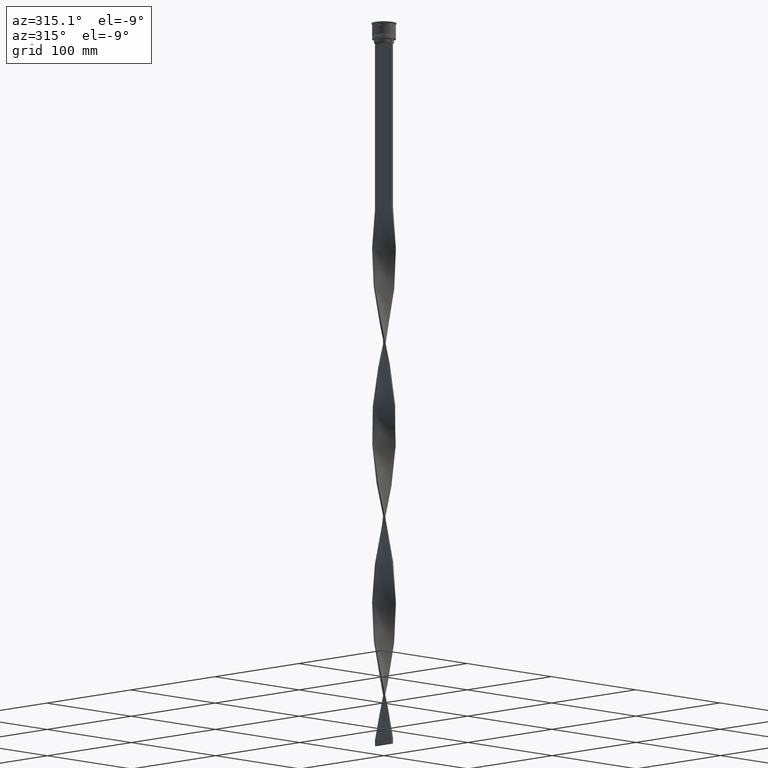
[diagram: clean part render]
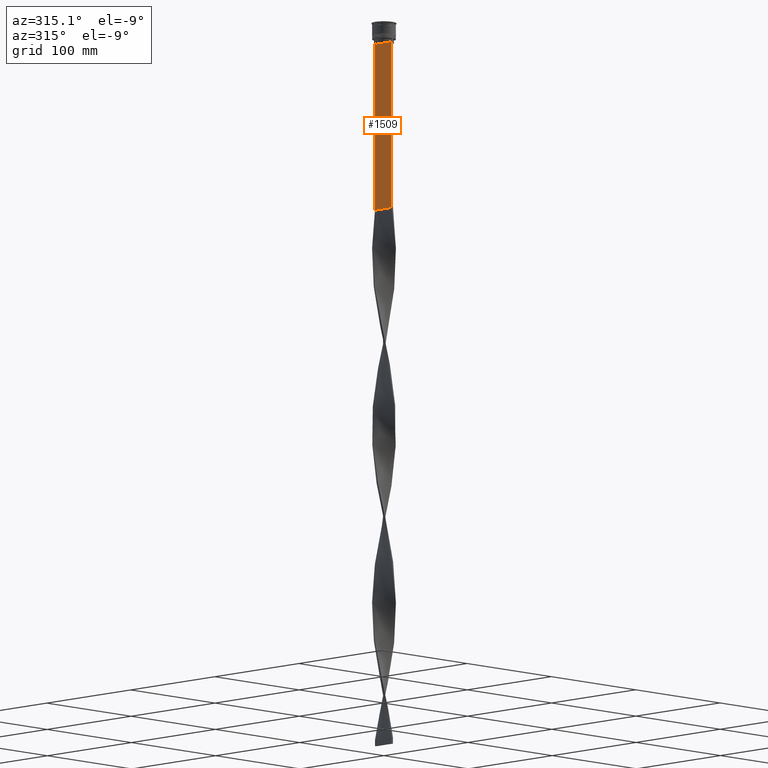
[diagram: same view with one face highlighted and labeled with its STEP entity id]
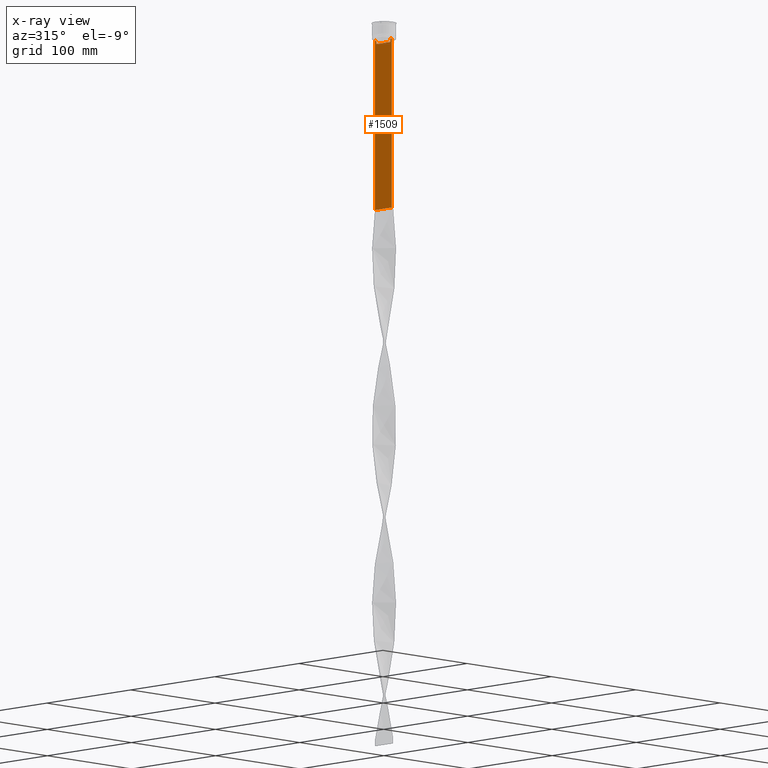
[diagram: x-ray of the same camera — body ghosted, the highlighted face saturated]
A machine part, auxiliary view. The second image highlights one B-rep face of the part: STEP entity #1509.
The next image is the same camera in x-ray: the body ghosted, the highlighted face saturated — about 0% of this face is hidden behind the body in this view.
In plain terms, the highlighted planar face has unit normal (-1, 0, 0).
Its self-contained STEP definition (entity closure, byte-faithful):
#82 = FACE_OUTER_BOUND ( 'NONE', #1868, .T. ) ;
#96 = ORIENTED_EDGE ( 'NONE', *, *, #2450, .F. ) ;
#126 = VERTEX_POINT ( 'NONE', #2673 ) ;
#156 = VECTOR ( 'NONE', #3453, 1000.000000000000000 ) ;
#188 = EDGE_CURVE ( 'NONE', #4255, #3813, #701, .T. ) ;
#273 = DIRECTION ( 'NONE',  ( -0.000000000000000000, -0.000000000000000000, 1.000000000000000000 ) ) ;
#306 = VECTOR ( 'NONE', #273, 1000.000000000000000 ) ;
#311 = VECTOR ( 'NONE', #665, 1000.000000000000000 ) ;
#339 = VERTEX_POINT ( 'NONE', #1740 ) ;
#378 = CARTESIAN_POINT ( 'NONE',  ( -0.7499999999999997780, -10.00000000000000533, -14.00000000000000178 ) ) ;
#450 = EDGE_CURVE ( 'NONE', #3269, #3813, #1953, .T. ) ;
#508 = CARTESIAN_POINT ( 'NONE',  ( -0.7499999999999997780, -10.00000000000000533, -14.00000000000000178 ) ) ;
#563 = VERTEX_POINT ( 'NONE', #2522 ) ;
#575 = ORIENTED_EDGE ( 'NONE', *, *, #2710, .F. ) ;
#665 = DIRECTION ( 'NONE',  ( 0.000000000000000000, -1.000000000000000000, 0.000000000000000000 ) ) ;
#701 = LINE ( 'NONE', #2855, #156 ) ;
#786 = CARTESIAN_POINT ( 'NONE',  ( -0.7499999999999997780, 9.999999999999998224, -14.00000000000000178 ) ) ;
#861 = B_SPLINE_CURVE_WITH_KNOTS ( 'NONE', 3,
 ( #4438, #2675, #4048, #880 ),
 .UNSPECIFIED., .F., .F.,
 ( 4, 4 ),
 ( 0.03866293624047253963, 0.03937282246709321309 ),
 .UNSPECIFIED. ) ;
#871 = CARTESIAN_POINT ( 'NONE',  ( -0.7499999999999997780, 8.701063075415252257, -14.16668448247791723 ) ) ;
#880 = CARTESIAN_POINT ( 'NONE',  ( -0.7499999999999997780, -8.868342573446296839, -14.00000000000000178 ) ) ;
#919 = VERTEX_POINT ( 'NONE', #2077 ) ;
#1164 = DIRECTION ( 'NONE',  ( 0.000000000000000000, 0.000000000000000000, 1.000000000000000000 ) ) ;
#1206 = ORIENTED_EDGE ( 'NONE', *, *, #1643, .F. ) ;
#1241 = VERTEX_POINT ( 'NONE', #2757 ) ;
#1242 = LINE ( 'NONE', #1889, #1770 ) ;
#1256 = LINE ( 'NONE', #3314, #3542 ) ;
#1267 = ORIENTED_EDGE ( 'NONE', *, *, #3501, .F. ) ;
#1284 = CARTESIAN_POINT ( 'NONE',  ( -0.7499999999999997780, -8.366450860430608927, 0.000000000000000000 ) ) ;
#1436 = CARTESIAN_POINT ( 'NONE',  ( -0.7499999999999997780, -10.00000000000000533, 6.056171120131581098 ) ) ;
#1451 = ORIENTED_EDGE ( 'NONE', *, *, #3449, .F. ) ;
#1509 = ADVANCED_FACE ( 'NONE', ( #82 ), #2524, .T. ) ;
#1544 = LINE ( 'NONE', #1284, #306 ) ;
#1571 = DIRECTION ( 'NONE',  ( 0.000000000000000000, -1.000000000000000000, 0.000000000000000000 ) ) ;
#1609 = ORIENTED_EDGE ( 'NONE', *, *, #3067, .F. ) ;
#1643 = EDGE_CURVE ( 'NONE', #3898, #4091, #2992, .T. ) ;
#1657 = CARTESIAN_POINT ( 'NONE',  ( -0.7499999999999998890, -10.00000000000000533, -157.9999999999999716 ) ) ;
#1740 = CARTESIAN_POINT ( 'NONE',  ( -0.7499999999999997780, 9.871550030263740894, -14.00000000000000178 ) ) ;
#1764 = CARTESIAN_POINT ( 'NONE',  ( -0.7499999999999997780, -10.00000000000000533, -14.00000000000000178 ) ) ;
#1770 = VECTOR ( 'NONE', #4069, 1000.000000000000000 ) ;
#1846 = CARTESIAN_POINT ( 'NONE',  ( -0.7499999999999997780, 9.999999999999998224, -157.9999999999999716 ) ) ;
#1868 = EDGE_LOOP ( 'NONE', ( #575, #3066, #1451, #2237, #1967, #1609, #3553, #1206, #4146, #96, #1267, #3352 ) ) ;
#1889 = CARTESIAN_POINT ( 'NONE',  ( -0.7499999999999997780, -10.00000000000000533, 6.056171120131581098 ) ) ;
#1915 = AXIS2_PLACEMENT_3D ( 'NONE', #1436, #3947, #1164 ) ;
#1953 = LINE ( 'NONE', #3022, #2816 ) ;
#1956 = CARTESIAN_POINT ( 'NONE',  ( -0.7499999999999997780, -10.00000000000000533, -14.00000000000000178 ) ) ;
#1964 = DIRECTION ( 'NONE',  ( 0.000000000000000000, -1.000000000000000000, 0.000000000000000000 ) ) ;
#1967 = ORIENTED_EDGE ( 'NONE', *, *, #450, .F. ) ;
#2071 = VECTOR ( 'NONE', #1571, 1000.000000000000000 ) ;
#2077 = CARTESIAN_POINT ( 'NONE',  ( -0.7499999999999997780, -8.366450860430608927, -14.50000000000000000 ) ) ;
#2215 = LINE ( 'NONE', #378, #3045 ) ;
#2237 = ORIENTED_EDGE ( 'NONE', *, *, #188, .T. ) ;
#2273 = CARTESIAN_POINT ( 'NONE',  ( -0.7499999999999997780, -9.871550030263740894, -14.00000000000000178 ) ) ;
#2338 = CARTESIAN_POINT ( 'NONE',  ( -0.7499999999999997780, 8.400000000000003908, -17.00000000000000000 ) ) ;
#2354 = CARTESIAN_POINT ( 'NONE',  ( -0.7499999999999997780, 8.366450860430608927, -14.50000000000000000 ) ) ;
#2450 = EDGE_CURVE ( 'NONE', #563, #919, #1544, .T. ) ;
#2522 = CARTESIAN_POINT ( 'NONE',  ( -0.7499999999999997780, -8.366450860430608927, -17.00000000000000000 ) ) ;
#2524 = PLANE ( 'NONE',  #1915 ) ;
#2657 = EDGE_CURVE ( 'NONE', #1241, #3215, #1256, .T. ) ;
#2673 = CARTESIAN_POINT ( 'NONE',  ( -0.7499999999999997780, 8.868342573446296839, -14.00000000000000178 ) ) ;
#2675 = CARTESIAN_POINT ( 'NONE',  ( -0.7499999999999997780, -8.533766903463440912, -14.33335220807192201 ) ) ;
#2710 = EDGE_CURVE ( 'NONE', #126, #1241, #3499, .T. ) ;
#2732 = VECTOR ( 'NONE', #3160, 1000.000000000000000 ) ;
#2757 = CARTESIAN_POINT ( 'NONE',  ( -0.7499999999999997780, 8.366450860430608927, -14.50000000000000000 ) ) ;
#2816 = VECTOR ( 'NONE', #3366, 1000.000000000000000 ) ;
#2855 = CARTESIAN_POINT ( 'NONE',  ( -0.7499999999999997780, 9.999999999999998224, 6.056171120131581098 ) ) ;
#2992 = LINE ( 'NONE', #508, #3390 ) ;
#3022 = CARTESIAN_POINT ( 'NONE',  ( -0.7499999999999997780, -10.00000000000000533, -157.9999999999999716 ) ) ;
#3045 = VECTOR ( 'NONE', #3242, 1000.000000000000000 ) ;
#3066 = ORIENTED_EDGE ( 'NONE', *, *, #3149, .F. ) ;
#3067 = EDGE_CURVE ( 'NONE', #3716, #3269, #1242, .T. ) ;
#3149 = EDGE_CURVE ( 'NONE', #339, #126, #3326, .T. ) ;
#3160 = DIRECTION ( 'NONE',  ( 0.000000000000000000, -1.000000000000000000, 0.000000000000000000 ) ) ;
#3215 = VERTEX_POINT ( 'NONE', #4113 ) ;
#3219 = CARTESIAN_POINT ( 'NONE',  ( -0.7499999999999997780, -8.868342573446296839, -14.00000000000000178 ) ) ;
#3242 = DIRECTION ( 'NONE',  ( 0.000000000000000000, -1.000000000000000000, 0.000000000000000000 ) ) ;
#3269 = VERTEX_POINT ( 'NONE', #1657 ) ;
#3314 = CARTESIAN_POINT ( 'NONE',  ( -0.7499999999999997780, 8.366450860430608927, 0.000000000000000000 ) ) ;
#3326 = LINE ( 'NONE', #1956, #2071 ) ;
#3352 = ORIENTED_EDGE ( 'NONE', *, *, #2657, .F. ) ;
#3366 = DIRECTION ( 'NONE',  ( 0.000000000000000000, 1.000000000000000000, 0.000000000000000000 ) ) ;
#3390 = VECTOR ( 'NONE', #1964, 1000.000000000000000 ) ;
#3402 = CARTESIAN_POINT ( 'NONE',  ( -0.7499999999999997780, 8.533766897779926808, -14.33335221373273782 ) ) ;
#3448 = LINE ( 'NONE', #2338, #311 ) ;
#3449 = EDGE_CURVE ( 'NONE', #4255, #339, #3520, .T. ) ;
#3453 = DIRECTION ( 'NONE',  ( 0.000000000000000000, 0.000000000000000000, -1.000000000000000000 ) ) ;
#3499 = B_SPLINE_CURVE_WITH_KNOTS ( 'NONE', 3,
 ( #4122, #871, #3402, #2354 ),
 .UNSPECIFIED., .F., .F.,
 ( 4, 4 ),
 ( 0.01512225952876174867, 0.01583070519299695222 ),
 .UNSPECIFIED. ) ;
#3501 = EDGE_CURVE ( 'NONE', #3215, #563, #3448, .T. ) ;
#3520 = LINE ( 'NONE', #1764, #2732 ) ;
#3542 = VECTOR ( 'NONE', #4082, 1000.000000000000000 ) ;
#3553 = ORIENTED_EDGE ( 'NONE', *, *, #3827, .F. ) ;
#3716 = VERTEX_POINT ( 'NONE', #4333 ) ;
#3813 = VERTEX_POINT ( 'NONE', #1846 ) ;
#3827 = EDGE_CURVE ( 'NONE', #4091, #3716, #2215, .T. ) ;
#3898 = VERTEX_POINT ( 'NONE', #3219 ) ;
#3947 = DIRECTION ( 'NONE',  ( -1.000000000000000000, 0.000000000000000000, 0.000000000000000000 ) ) ;
#4048 = CARTESIAN_POINT ( 'NONE',  ( -0.7499999999999997780, -8.701063080777123204, -14.16668447713511547 ) ) ;
#4069 = DIRECTION ( 'NONE',  ( 0.000000000000000000, 0.000000000000000000, -1.000000000000000000 ) ) ;
#4082 = DIRECTION ( 'NONE',  ( 0.000000000000000000, 0.000000000000000000, -1.000000000000000000 ) ) ;
#4086 = EDGE_CURVE ( 'NONE', #919, #3898, #861, .T. ) ;
#4091 = VERTEX_POINT ( 'NONE', #2273 ) ;
#4113 = CARTESIAN_POINT ( 'NONE',  ( -0.7499999999999997780, 8.366450860430608927, -17.00000000000000000 ) ) ;
#4122 = CARTESIAN_POINT ( 'NONE',  ( -0.7499999999999997780, 8.868342573446296839, -14.00000000000000178 ) ) ;
#4146 = ORIENTED_EDGE ( 'NONE', *, *, #4086, .F. ) ;
#4255 = VERTEX_POINT ( 'NONE', #786 ) ;
#4333 = CARTESIAN_POINT ( 'NONE',  ( -0.7499999999999997780, -10.00000000000000533, -14.00000000000000178 ) ) ;
#4438 = CARTESIAN_POINT ( 'NONE',  ( -0.7499999999999997780, -8.366450860430608927, -14.50000000000000000 ) ) ;